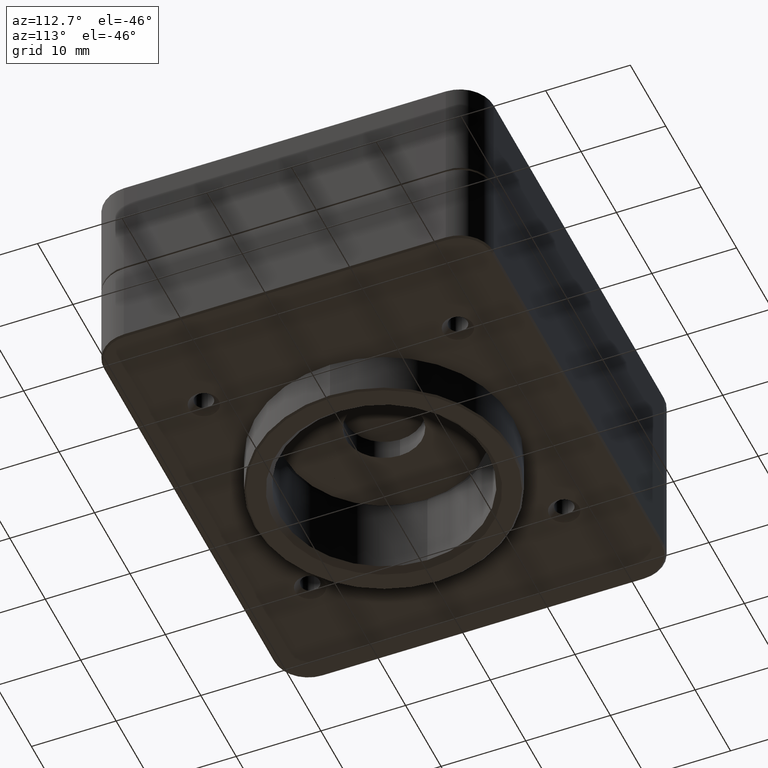
[diagram: clean part render]
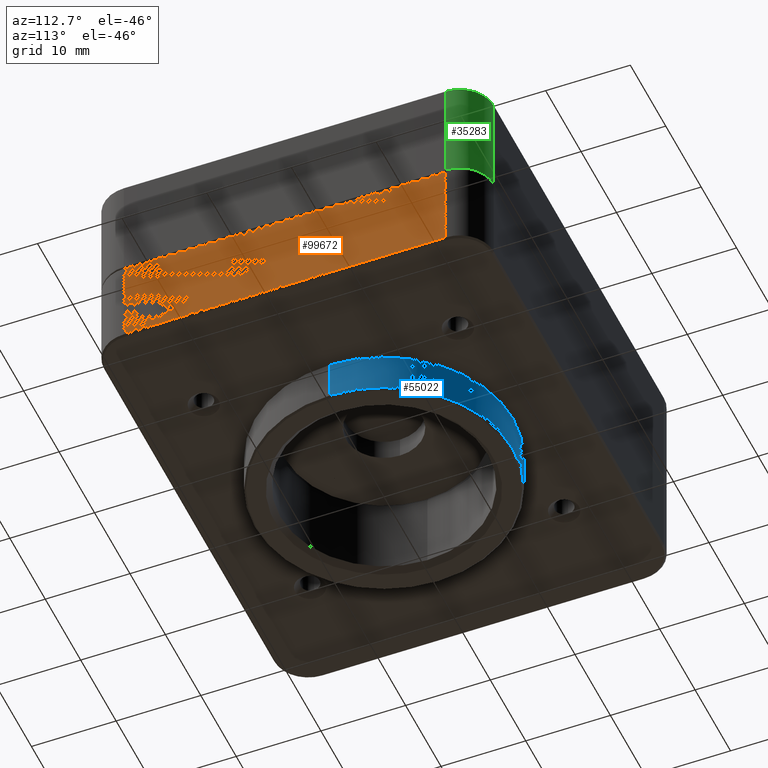
[diagram: same view with three faces highlighted in distinct colors, each labeled with its STEP entity id]
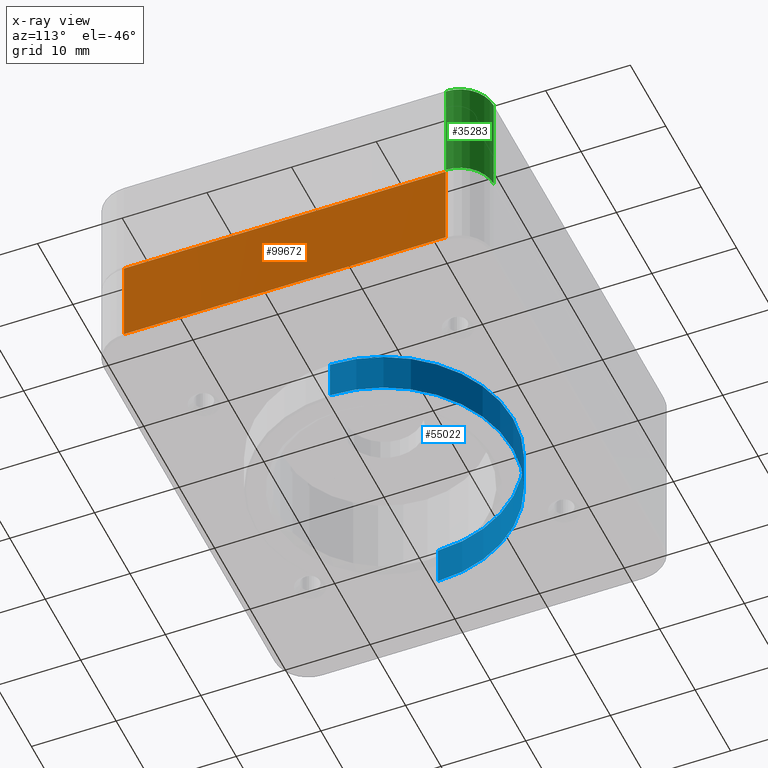
[diagram: x-ray of the same camera — body ghosted, the three highlighted faces saturated]
A machine part, auxiliary view with three faces highlighted in distinct colors.
The next image is the same camera in x-ray (body ghosted, the three faces saturated) — at least one of them is partly hidden behind the body in this view.
Their STEP definitions:

[orange] entity #99672 — the highlighted planar face has unit normal (-1, 0, -0).
#372 = CARTESIAN_POINT ( 'NONE',  ( 28.00000000000000000, 23.00000000000000400, 15.50000000000000900 ) ) ;
#5274 = VERTEX_POINT ( 'NONE', #62466 ) ;
#6174 = AXIS2_PLACEMENT_3D ( 'NONE', #56335, #7144, #64593 ) ;
#7144 = DIRECTION ( 'NONE',  ( -1.000000000000000000, 1.231653667943532800E-016, -3.284293275761185500E-047 ) ) ;
#9173 = ORIENTED_EDGE ( 'NONE', *, *, #29237, .F. ) ;
#13228 = VERTEX_POINT ( 'NONE', #96629 ) ;
#16572 = DIRECTION ( 'NONE',  ( -3.284293275761290000E-047, -8.495371939969203500E-045, 1.000000000000000000 ) ) ;
#17049 = VECTOR ( 'NONE', #16572, 1000.000000000000000 ) ;
#17242 = DIRECTION ( 'NONE',  ( -1.231653667943532800E-016, -1.000000000000000000, -8.232628477908297800E-045 ) ) ;
#18598 = CARTESIAN_POINT ( 'NONE',  ( 28.00000000001114100, -19.00000000000000400, 5.200000000010994100 ) ) ;
#23253 = EDGE_CURVE ( 'NONE', #5274, #46672, #106208, .T. ) ;
#25264 = CARTESIAN_POINT ( 'NONE',  ( 28.00000000000000000, 19.00000000000000000, 5.000000000000000900 ) ) ;
#29237 = EDGE_CURVE ( 'NONE', #13228, #5274, #45311, .T. ) ;
#33591 = VERTEX_POINT ( 'NONE', #18598 ) ;
#34327 = EDGE_LOOP ( 'NONE', ( #72184, #74617, #9173, #53137 ) ) ;
#41336 = DIRECTION ( 'NONE',  ( 1.231653667943532800E-016, 1.000000000000000000, 8.232628477908299000E-045 ) ) ;
#41737 = CARTESIAN_POINT ( 'NONE',  ( 28.00000000001114800, 19.00000000000001100, 5.200000000010994100 ) ) ;
#42315 = VECTOR ( 'NONE', #17242, 1000.000000000000000 ) ;
#43200 = VECTOR ( 'NONE', #82997, 1000.000000000000000 ) ;
#45311 = LINE ( 'NONE', #372, #86416 ) ;
#46672 = VERTEX_POINT ( 'NONE', #41737 ) ;
#50875 = EDGE_CURVE ( 'NONE', #46672, #33591, #85976, .T. ) ;
#53137 = ORIENTED_EDGE ( 'NONE', *, *, #100615, .F. ) ;
#56335 = CARTESIAN_POINT ( 'NONE',  ( 28.00000000000000000, 23.00000000000000400, 5.000000000000000900 ) ) ;
#62466 = CARTESIAN_POINT ( 'NONE',  ( 28.00000000000000000, 19.00000000000000000, 15.50000000000000900 ) ) ;
#63731 = FACE_OUTER_BOUND ( 'NONE', #34327, .T. ) ;
#64593 = DIRECTION ( 'NONE',  ( -3.284293275761290000E-047, -8.495371939969203500E-045, 1.000000000000000000 ) ) ;
#65747 = CARTESIAN_POINT ( 'NONE',  ( 27.99999999999999300, -19.00000000000000400, 5.000000000000000900 ) ) ;
#66374 = CARTESIAN_POINT ( 'NONE',  ( 27.99999999999999600, -23.00000000000000700, 5.200000000000013500 ) ) ;
#72184 = ORIENTED_EDGE ( 'NONE', *, *, #50875, .F. ) ;
#74617 = ORIENTED_EDGE ( 'NONE', *, *, #23253, .F. ) ;
#79959 = LINE ( 'NONE', #65747, #17049 ) ;
#82997 = DIRECTION ( 'NONE',  ( 3.284293275761290000E-047, 8.495371939969203500E-045, -1.000000000000000000 ) ) ;
#85976 = LINE ( 'NONE', #66374, #42315 ) ;
#86416 = VECTOR ( 'NONE', #41336, 1000.000000000000000 ) ;
#88274 = PLANE ( 'NONE',  #6174 ) ;
#96629 = CARTESIAN_POINT ( 'NONE',  ( 27.99999999999999300, -19.00000000000000700, 15.50000000000000900 ) ) ;
#99672 = ADVANCED_FACE ( 'NONE', ( #63731 ), #88274, .F. ) ;
#100615 = EDGE_CURVE ( 'NONE', #33591, #13228, #79959, .T. ) ;
#106208 = LINE ( 'NONE', #25264, #43200 ) ;

[blue] entity #55022 — the highlighted cylindrical surface (partial cylindrical patch) has radius 15.25 mm, axis along (-0, -0, 1).
#2170 = CARTESIAN_POINT ( 'NONE',  ( -15.25000000000000000, 3.312177343319399100E-015, 5.000000000000000900 ) ) ;
#5529 = DIRECTION ( 'NONE',  ( 1.000000000000000000, -1.231653667943532500E-016, 2.200476494760063700E-045 ) ) ;
#6692 = ORIENTED_EDGE ( 'NONE', *, *, #30074, .T. ) ;
#7983 = VERTEX_POINT ( 'NONE', #32981 ) ;
#9089 = VERTEX_POINT ( 'NONE', #80136 ) ;
#9573 = CYLINDRICAL_SURFACE ( 'NONE', #88469, 15.25000000000000400 ) ;
#10160 = EDGE_CURVE ( 'NONE', #45510, #7983, #85389, .T. ) ;
#13062 = DIRECTION ( 'NONE',  ( -3.284293275761290000E-047, -8.495371939969203500E-045, 1.000000000000000000 ) ) ;
#13423 = CARTESIAN_POINT ( 'NONE',  ( 0.0000000000000000000, -4.336808689942017700E-016, 0.1999999999999987900 ) ) ;
#14593 = DIRECTION ( 'NONE',  ( -3.284293275761290000E-047, -8.495371939969203500E-045, 1.000000000000000000 ) ) ;
#16587 = AXIS2_PLACEMENT_3D ( 'NONE', #87993, #38793, #96286 ) ;
#17132 = ORIENTED_EDGE ( 'NONE', *, *, #82822, .T. ) ;
#19476 = CIRCLE ( 'NONE', #90204, 15.25000000000000400 ) ;
#21634 = DIRECTION ( 'NONE',  ( 1.000000000000000000, -1.231653667943532500E-016, 0.0000000000000000000 ) ) ;
#24309 = EDGE_CURVE ( 'NONE', #7983, #36916, #94180, .T. ) ;
#26484 = CARTESIAN_POINT ( 'NONE',  ( 15.25000000000000400, -2.311952712608089300E-015, 0.1999999999999987900 ) ) ;
#30074 = EDGE_CURVE ( 'NONE', #9089, #36916, #83384, .T. ) ;
#32981 = CARTESIAN_POINT ( 'NONE',  ( 15.25000000000000400, -2.311952712608089300E-015, 5.000000000000000900 ) ) ;
#36916 = VERTEX_POINT ( 'NONE', #2170 ) ;
#38793 = DIRECTION ( 'NONE',  ( -3.284293275761290000E-047, -8.495371939969203500E-045, 1.000000000000000000 ) ) ;
#39742 = VECTOR ( 'NONE', #14593, 1000.000000000000000 ) ;
#40090 = CARTESIAN_POINT ( 'NONE',  ( 15.25000000000000400, -2.311952712608089300E-015, 3.355726654509098100E-044 ) ) ;
#45510 = VERTEX_POINT ( 'NONE', #26484 ) ;
#55022 = ADVANCED_FACE ( 'NONE', ( #104674 ), #9573, .T. ) ;
#63594 = VECTOR ( 'NONE', #64859, 1000.000000000000000 ) ;
#63763 = CARTESIAN_POINT ( 'NONE',  ( -15.25000000000000400, 3.312177343319399900E-015, -3.355726654509096600E-044 ) ) ;
#64859 = DIRECTION ( 'NONE',  ( -3.284293275761290000E-047, -8.495371939969203500E-045, 1.000000000000000000 ) ) ;
#70854 = DIRECTION ( 'NONE',  ( -3.284293275761290000E-047, -8.495371939969203500E-045, 1.000000000000000000 ) ) ;
#70856 = CARTESIAN_POINT ( 'NONE',  ( 0.0000000000000000000, -4.336808689942017700E-016, 0.0000000000000000000 ) ) ;
#80136 = CARTESIAN_POINT ( 'NONE',  ( -15.25000000000000400, 3.312177343319399900E-015, 0.1999999999999987900 ) ) ;
#82822 = EDGE_CURVE ( 'NONE', #45510, #9089, #19476, .T. ) ;
#83384 = LINE ( 'NONE', #63763, #39742 ) ;
#85389 = LINE ( 'NONE', #40090, #63594 ) ;
#87993 = CARTESIAN_POINT ( 'NONE',  ( 0.0000000000000000000, -4.336808689942017700E-016, 5.000000000000000900 ) ) ;
#88469 = AXIS2_PLACEMENT_3D ( 'NONE', #70856, #13062, #5529 ) ;
#90005 = EDGE_LOOP ( 'NONE', ( #17132, #6692, #105195, #103552 ) ) ;
#90204 = AXIS2_PLACEMENT_3D ( 'NONE', #13423, #70854, #21634 ) ;
#94180 = CIRCLE ( 'NONE', #16587, 15.25000000000000400 ) ;
#96286 = DIRECTION ( 'NONE',  ( 1.000000000000000000, -1.231653667943532500E-016, 0.0000000000000000000 ) ) ;
#103552 = ORIENTED_EDGE ( 'NONE', *, *, #10160, .F. ) ;
#104674 = FACE_OUTER_BOUND ( 'NONE', #90005, .T. ) ;
#105195 = ORIENTED_EDGE ( 'NONE', *, *, #24309, .F. ) ;

[green] entity #35283 — the highlighted cylindrical surface (partial cylindrical patch) has radius 4 mm, axis along (0, 0, -1).
#545 = DIRECTION ( 'NONE',  ( 1.000000000000000000, 0.0000000000000000000, 0.0000000000000000000 ) ) ;
#2242 = AXIS2_PLACEMENT_3D ( 'NONE', #42672, #58848, #26538 ) ;
#5030 = ORIENTED_EDGE ( 'NONE', *, *, #53933, .T. ) ;
#9709 = DIRECTION ( 'NONE',  ( -0.0000000000000000000, -0.0000000000000000000, 1.000000000000000000 ) ) ;
#18038 = AXIS2_PLACEMENT_3D ( 'NONE', #58899, #9709, #67141 ) ;
#21590 = FACE_OUTER_BOUND ( 'NONE', #27210, .T. ) ;
#24678 = VECTOR ( 'NONE', #35909, 1000.000000000000000 ) ;
#24977 = VERTEX_POINT ( 'NONE', #63488 ) ;
#26538 = DIRECTION ( 'NONE',  ( -1.000000000000000000, 0.0000000000000000000, 0.0000000000000000000 ) ) ;
#27210 = EDGE_LOOP ( 'NONE', ( #38405, #52990, #5030, #91690 ) ) ;
#31184 = CIRCLE ( 'NONE', #98261, 4.000000000000000000 ) ;
#32490 = CIRCLE ( 'NONE', #18038, 3.999999999973132600 ) ;
#34886 = CARTESIAN_POINT ( 'NONE',  ( 27.99999995968624900, 18.99999999999999600, 15.79032444000000300 ) ) ;
#35283 = ADVANCED_FACE ( 'NONE', ( #21590 ), #55017, .T. ) ;
#35909 = DIRECTION ( 'NONE',  ( -0.0000000000000000000, 0.0000000000000000000, 1.000000000000000000 ) ) ;
#36921 = DIRECTION ( 'NONE',  ( 0.0000000000000000000, 0.0000000000000000000, -1.000000000000000000 ) ) ;
#38405 = ORIENTED_EDGE ( 'NONE', *, *, #43689, .T. ) ;
#38708 = VERTEX_POINT ( 'NONE', #34886 ) ;
#39941 = VECTOR ( 'NONE', #36921, 1000.000000000000000 ) ;
#42672 = CARTESIAN_POINT ( 'NONE',  ( 23.99999995968624900, 18.99999999999999600, 27.29032444000000600 ) ) ;
#43689 = EDGE_CURVE ( 'NONE', #24977, #38708, #83582, .T. ) ;
#46049 = EDGE_CURVE ( 'NONE', #101682, #38708, #31184, .T. ) ;
#49775 = DIRECTION ( 'NONE',  ( -0.0000000000000000000, 0.0000000000000000000, -1.000000000000000000 ) ) ;
#52990 = ORIENTED_EDGE ( 'NONE', *, *, #46049, .F. ) ;
#53933 = EDGE_CURVE ( 'NONE', #101682, #74725, #95399, .T. ) ;
#55017 = CYLINDRICAL_SURFACE ( 'NONE', #2242, 4.000000000000000000 ) ;
#57739 = EDGE_CURVE ( 'NONE', #24977, #74725, #32490, .T. ) ;
#58848 = DIRECTION ( 'NONE',  ( 0.0000000000000000000, 0.0000000000000000000, -1.000000000000000000 ) ) ;
#58899 = CARTESIAN_POINT ( 'NONE',  ( 23.99999995968624900, 18.99999999999999600, 28.09032444004547800 ) ) ;
#63488 = CARTESIAN_POINT ( 'NONE',  ( 27.99999995965316300, 19.00000000000000000, 28.09032444003695900 ) ) ;
#67141 = DIRECTION ( 'NONE',  ( -1.000000000000000000, 0.0000000000000000000, 0.0000000000000000000 ) ) ;
#72946 = CARTESIAN_POINT ( 'NONE',  ( 23.99999995968624900, 22.99999999997304200, 28.09032444003695900 ) ) ;
#74725 = VERTEX_POINT ( 'NONE', #72946 ) ;
#83582 = LINE ( 'NONE', #85753, #39941 ) ;
#85753 = CARTESIAN_POINT ( 'NONE',  ( 27.99999995968624900, 18.99999999999999300, 27.29032444000000600 ) ) ;
#91690 = ORIENTED_EDGE ( 'NONE', *, *, #57739, .F. ) ;
#93420 = CARTESIAN_POINT ( 'NONE',  ( 23.99999995968624900, 22.99999999999999300, 27.29032444000000600 ) ) ;
#95399 = LINE ( 'NONE', #93420, #24678 ) ;
#98261 = AXIS2_PLACEMENT_3D ( 'NONE', #98961, #49775, #545 ) ;
#98961 = CARTESIAN_POINT ( 'NONE',  ( 23.99999995968624900, 18.99999999999999600, 15.79032444000000300 ) ) ;
#99323 = CARTESIAN_POINT ( 'NONE',  ( 23.99999995968624900, 22.99999999999999300, 15.79032444000000300 ) ) ;
#101682 = VERTEX_POINT ( 'NONE', #99323 ) ;